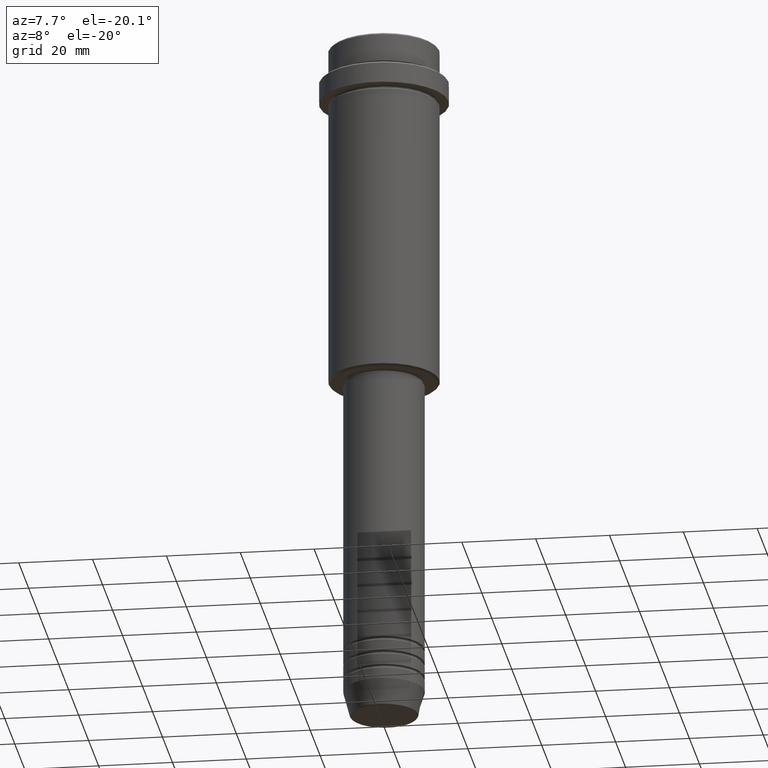
[diagram: clean part render]
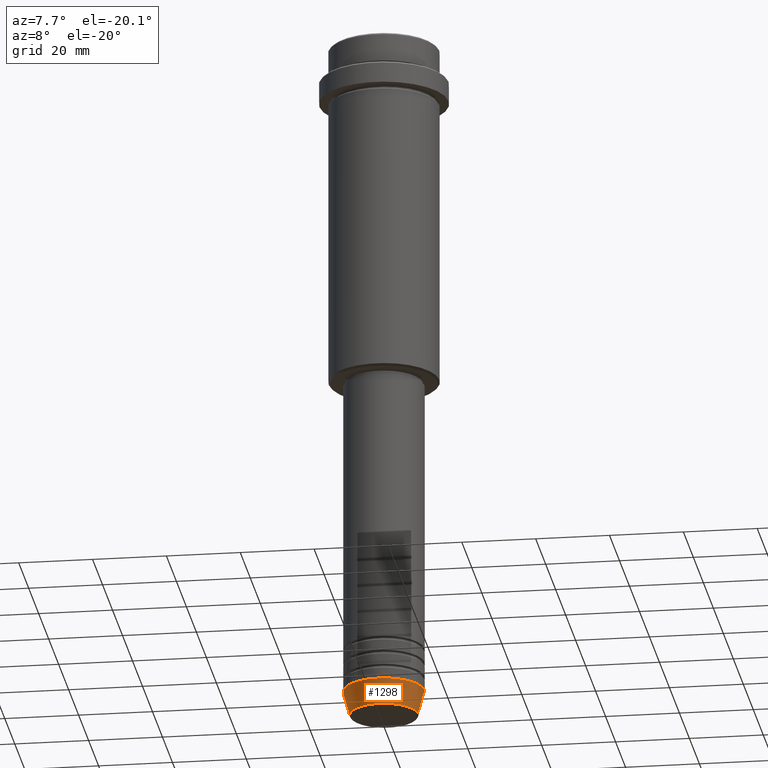
[diagram: same view with one face highlighted and labeled with its STEP entity id]
A machine part, auxiliary view. The second image highlights one B-rep face of the part: STEP entity #1298.
In plain terms, the highlighted conical surface has half-angle 15 deg.
Its self-contained STEP definition (entity closure, byte-faithful):
#51 = EDGE_CURVE ( 'NONE', #576, #310, #678, .T. ) ;
#61 = AXIS2_PLACEMENT_3D ( 'NONE', #226, #630, #309 ) ;
#68 = DIRECTION ( 'NONE',  ( 0.2588190451025213501, 0.000000000000000000, 0.9659258262890680902 ) ) ;
#69 = AXIS2_PLACEMENT_3D ( 'NONE', #935, #831, #1247 ) ;
#98 = EDGE_LOOP ( 'NONE', ( #714, #181, #929, #376 ) ) ;
#117 = DIRECTION ( 'NONE',  ( -0.2588190451025213501, 3.169619151431772337E-17, 0.9659258262890680902 ) ) ;
#126 = EDGE_CURVE ( 'NONE', #576, #738, #668, .T. ) ;
#181 = ORIENTED_EDGE ( 'NONE', *, *, #51, .T. ) ;
#226 = CARTESIAN_POINT ( 'NONE',  ( 0.000000000000000000, 0.000000000000000000, -189.6294095225512422 ) ) ;
#293 = CARTESIAN_POINT ( 'NONE',  ( -11.00000000000000000, 1.347111479062088405E-15, -183.0000000000000000 ) ) ;
#306 = DIRECTION ( 'NONE',  ( 1.000000000000000000, 0.000000000000000000, 0.000000000000000000 ) ) ;
#309 = DIRECTION ( 'NONE',  ( 1.000000000000000000, 0.000000000000000000, 0.000000000000000000 ) ) ;
#310 = VERTEX_POINT ( 'NONE', #1001 ) ;
#321 = CARTESIAN_POINT ( 'NONE',  ( 0.000000000000000000, 0.000000000000000000, -183.0000000000000000 ) ) ;
#376 = ORIENTED_EDGE ( 'NONE', *, *, #1120, .F. ) ;
#503 = EDGE_CURVE ( 'NONE', #310, #887, #1161, .T. ) ;
#528 = FACE_OUTER_BOUND ( 'NONE', #98, .T. ) ;
#562 = VECTOR ( 'NONE', #68, 1000.000000000000000 ) ;
#576 = VERTEX_POINT ( 'NONE', #1018 ) ;
#608 = CARTESIAN_POINT ( 'NONE',  ( 11.00000000000000000, 0.000000000000000000, -183.0000000000000000 ) ) ;
#630 = DIRECTION ( 'NONE',  ( -0.000000000000000000, -0.000000000000000000, 1.000000000000000000 ) ) ;
#668 = LINE ( 'NONE', #1113, #780 ) ;
#678 = CIRCLE ( 'NONE', #61, 9.223655072137189492 ) ;
#687 = CONICAL_SURFACE ( 'NONE', #848, 11.00000000000000000, 0.2617993877991500740 ) ;
#714 = ORIENTED_EDGE ( 'NONE', *, *, #126, .F. ) ;
#738 = VERTEX_POINT ( 'NONE', #293 ) ;
#780 = VECTOR ( 'NONE', #117, 1000.000000000000000 ) ;
#831 = DIRECTION ( 'NONE',  ( -0.000000000000000000, -0.000000000000000000, 1.000000000000000000 ) ) ;
#848 = AXIS2_PLACEMENT_3D ( 'NONE', #321, #1295, #306 ) ;
#887 = VERTEX_POINT ( 'NONE', #978 ) ;
#929 = ORIENTED_EDGE ( 'NONE', *, *, #503, .T. ) ;
#935 = CARTESIAN_POINT ( 'NONE',  ( 0.000000000000000000, 0.000000000000000000, -183.0000000000000000 ) ) ;
#978 = CARTESIAN_POINT ( 'NONE',  ( 11.00000000000000000, 0.000000000000000000, -183.0000000000000000 ) ) ;
#1001 = CARTESIAN_POINT ( 'NONE',  ( 9.223655072137189492, 0.000000000000000000, -189.6294095225512422 ) ) ;
#1018 = CARTESIAN_POINT ( 'NONE',  ( -9.223655072137189492, 1.238341722557647202E-15, -189.6294095225512422 ) ) ;
#1113 = CARTESIAN_POINT ( 'NONE',  ( -11.00000000000000000, 1.347111479062088405E-15, -183.0000000000000000 ) ) ;
#1120 = EDGE_CURVE ( 'NONE', #738, #887, #1391, .T. ) ;
#1161 = LINE ( 'NONE', #608, #562 ) ;
#1247 = DIRECTION ( 'NONE',  ( 1.000000000000000000, 0.000000000000000000, 0.000000000000000000 ) ) ;
#1295 = DIRECTION ( 'NONE',  ( -0.000000000000000000, -0.000000000000000000, 1.000000000000000000 ) ) ;
#1298 = ADVANCED_FACE ( 'NONE', ( #528 ), #687, .T. ) ;
#1391 = CIRCLE ( 'NONE', #69, 11.00000000000000000 ) ;